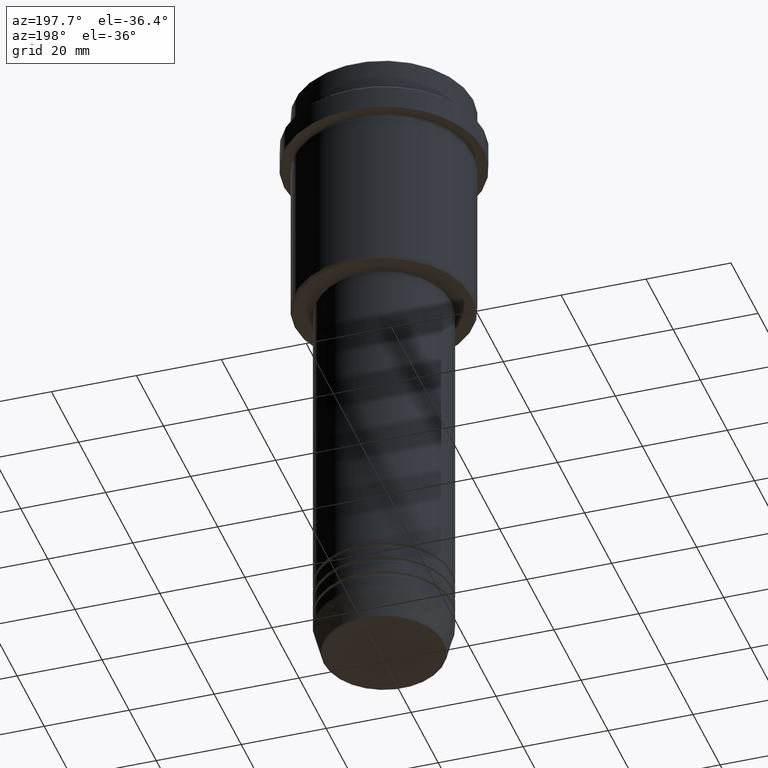
[diagram: clean part render]
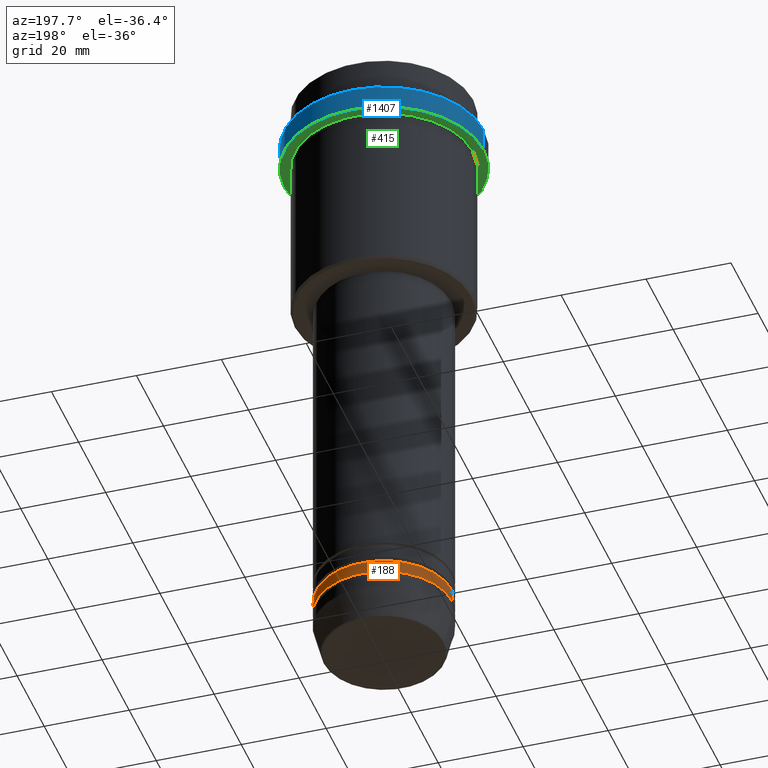
[diagram: same view with three faces highlighted in distinct colors, each labeled with its STEP entity id]
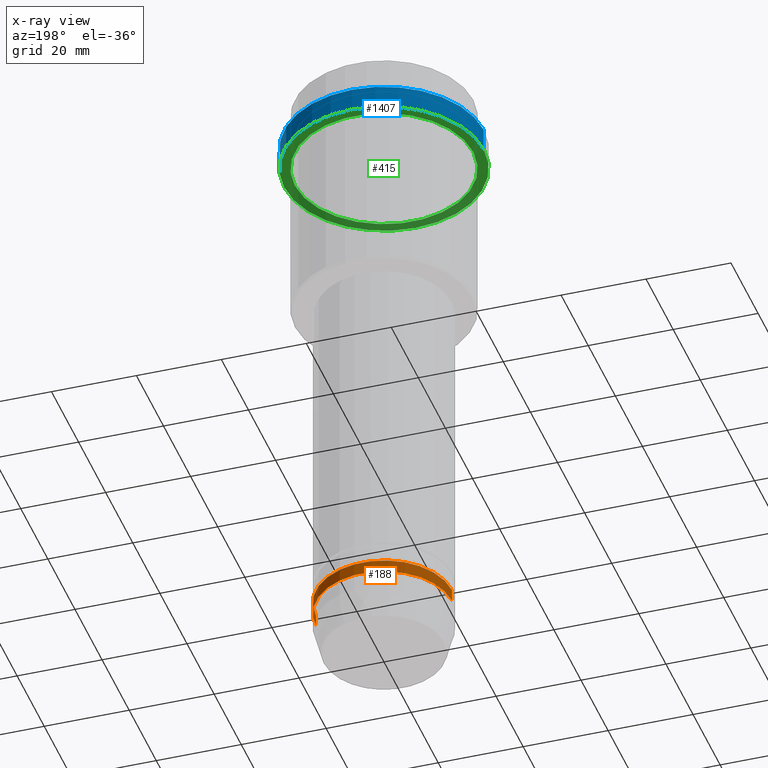
[diagram: x-ray of the same camera — body ghosted, the three highlighted faces saturated]
A machine part, auxiliary view with three faces highlighted in distinct colors.
The next image is the same camera in x-ray (body ghosted, the three faces saturated) — at least one of them is partly hidden behind the body in this view.
Their STEP definitions:

[orange] entity #188 — the highlighted cylindrical surface (partial cylindrical patch) has radius 16 mm, axis along (-0, -0, 1).
#54 = DIRECTION ( 'NONE',  ( -0.000000000000000000, -0.000000000000000000, 1.000000000000000000 ) ) ;
#96 = LINE ( 'NONE', #508, #884 ) ;
#114 = LINE ( 'NONE', #1110, #677 ) ;
#120 = DIRECTION ( 'NONE',  ( -0.000000000000000000, -0.000000000000000000, 1.000000000000000000 ) ) ;
#174 = AXIS2_PLACEMENT_3D ( 'NONE', #1044, #54, #388 ) ;
#188 = ADVANCED_FACE ( 'NONE', ( #888 ), #574, .T. ) ;
#191 = ORIENTED_EDGE ( 'NONE', *, *, #353, .F. ) ;
#353 = EDGE_CURVE ( 'NONE', #725, #946, #806, .T. ) ;
#383 = EDGE_LOOP ( 'NONE', ( #1350, #970, #191, #642 ) ) ;
#388 = DIRECTION ( 'NONE',  ( 1.000000000000000000, 0.000000000000000000, 0.000000000000000000 ) ) ;
#408 = EDGE_CURVE ( 'NONE', #1171, #725, #96, .T. ) ;
#460 = DIRECTION ( 'NONE',  ( -0.000000000000000000, -0.000000000000000000, 1.000000000000000000 ) ) ;
#470 = CARTESIAN_POINT ( 'NONE',  ( -16.00000000000000000, 1.959434878635765131E-15, -138.9999999999998579 ) ) ;
#508 = CARTESIAN_POINT ( 'NONE',  ( 16.00000000000000000, 0.000000000000000000, 0.000000000000000000 ) ) ;
#541 = CARTESIAN_POINT ( 'NONE',  ( 0.000000000000000000, 0.000000000000000000, -138.9999999999998579 ) ) ;
#574 = CYLINDRICAL_SURFACE ( 'NONE', #1098, 16.00000000000000000 ) ;
#642 = ORIENTED_EDGE ( 'NONE', *, *, #408, .F. ) ;
#677 = VECTOR ( 'NONE', #120, 1000.000000000000000 ) ;
#697 = CARTESIAN_POINT ( 'NONE',  ( 16.00000000000000000, 0.000000000000000000, -135.9999999999998579 ) ) ;
#725 = VERTEX_POINT ( 'NONE', #697 ) ;
#763 = VERTEX_POINT ( 'NONE', #470 ) ;
#768 = CARTESIAN_POINT ( 'NONE',  ( 16.00000000000000000, 0.000000000000000000, -138.9999999999998579 ) ) ;
#806 = CIRCLE ( 'NONE', #174, 16.00000000000000000 ) ;
#884 = VECTOR ( 'NONE', #1409, 1000.000000000000000 ) ;
#888 = FACE_OUTER_BOUND ( 'NONE', #383, .T. ) ;
#911 = EDGE_CURVE ( 'NONE', #1171, #763, #1112, .T. ) ;
#921 = EDGE_CURVE ( 'NONE', #763, #946, #114, .T. ) ;
#946 = VERTEX_POINT ( 'NONE', #1368 ) ;
#970 = ORIENTED_EDGE ( 'NONE', *, *, #921, .T. ) ;
#984 = DIRECTION ( 'NONE',  ( -0.000000000000000000, -0.000000000000000000, 1.000000000000000000 ) ) ;
#1044 = CARTESIAN_POINT ( 'NONE',  ( 0.000000000000000000, 0.000000000000000000, -135.9999999999998579 ) ) ;
#1098 = AXIS2_PLACEMENT_3D ( 'NONE', #1125, #460, #1233 ) ;
#1110 = CARTESIAN_POINT ( 'NONE',  ( -16.00000000000000000, 1.959434878635765131E-15, 0.000000000000000000 ) ) ;
#1112 = CIRCLE ( 'NONE', #1162, 16.00000000000000000 ) ;
#1125 = CARTESIAN_POINT ( 'NONE',  ( 0.000000000000000000, 0.000000000000000000, 0.000000000000000000 ) ) ;
#1162 = AXIS2_PLACEMENT_3D ( 'NONE', #541, #984, #1310 ) ;
#1171 = VERTEX_POINT ( 'NONE', #768 ) ;
#1233 = DIRECTION ( 'NONE',  ( 1.000000000000000000, 0.000000000000000000, 0.000000000000000000 ) ) ;
#1310 = DIRECTION ( 'NONE',  ( 1.000000000000000000, 0.000000000000000000, 0.000000000000000000 ) ) ;
#1350 = ORIENTED_EDGE ( 'NONE', *, *, #911, .T. ) ;
#1368 = CARTESIAN_POINT ( 'NONE',  ( -16.00000000000000000, 1.959434878635765131E-15, -135.9999999999998579 ) ) ;
#1409 = DIRECTION ( 'NONE',  ( -0.000000000000000000, -0.000000000000000000, 1.000000000000000000 ) ) ;

[blue] entity #1407 — the highlighted cylindrical surface (partial cylindrical patch) has radius 23.5 mm, axis along (-0, -0, 1).
#6 = CIRCLE ( 'NONE', #445, 23.50000000000000000 ) ;
#85 = AXIS2_PLACEMENT_3D ( 'NONE', #1259, #699, #1138 ) ;
#122 = DIRECTION ( 'NONE',  ( 0.000000000000000000, 0.000000000000000000, -1.000000000000000000 ) ) ;
#151 = AXIS2_PLACEMENT_3D ( 'NONE', #668, #1018, #891 ) ;
#197 = CARTESIAN_POINT ( 'NONE',  ( -23.50000000000000000, 2.877919977996280320E-15, 0.000000000000000000 ) ) ;
#232 = LINE ( 'NONE', #1105, #870 ) ;
#233 = DIRECTION ( 'NONE',  ( 1.000000000000000000, 0.000000000000000000, 0.000000000000000000 ) ) ;
#238 = VECTOR ( 'NONE', #1068, 1000.000000000000000 ) ;
#246 = ORIENTED_EDGE ( 'NONE', *, *, #827, .T. ) ;
#253 = FACE_OUTER_BOUND ( 'NONE', #622, .T. ) ;
#257 = VERTEX_POINT ( 'NONE', #1154 ) ;
#318 = EDGE_CURVE ( 'NONE', #525, #1075, #1195, .T. ) ;
#346 = CARTESIAN_POINT ( 'NONE',  ( 23.50000000000000355, 0.000000000000000000, -14.99999999999998757 ) ) ;
#365 = DIRECTION ( 'NONE',  ( -0.000000000000000000, -0.000000000000000000, 1.000000000000000000 ) ) ;
#445 = AXIS2_PLACEMENT_3D ( 'NONE', #1217, #122, #233 ) ;
#448 = CYLINDRICAL_SURFACE ( 'NONE', #151, 23.50000000000000000 ) ;
#483 = ORIENTED_EDGE ( 'NONE', *, *, #1398, .F. ) ;
#525 = VERTEX_POINT ( 'NONE', #346 ) ;
#605 = LINE ( 'NONE', #197, #238 ) ;
#622 = EDGE_LOOP ( 'NONE', ( #1142, #246, #1072, #483 ) ) ;
#657 = EDGE_CURVE ( 'NONE', #257, #1056, #6, .T. ) ;
#668 = CARTESIAN_POINT ( 'NONE',  ( 0.000000000000000000, 0.000000000000000000, 0.000000000000000000 ) ) ;
#699 = DIRECTION ( 'NONE',  ( -0.000000000000000000, -0.000000000000000000, 1.000000000000000000 ) ) ;
#827 = EDGE_CURVE ( 'NONE', #1075, #257, #605, .T. ) ;
#870 = VECTOR ( 'NONE', #365, 1000.000000000000000 ) ;
#891 = DIRECTION ( 'NONE',  ( 1.000000000000000000, 0.000000000000000000, 0.000000000000000000 ) ) ;
#1018 = DIRECTION ( 'NONE',  ( -0.000000000000000000, -0.000000000000000000, 1.000000000000000000 ) ) ;
#1056 = VERTEX_POINT ( 'NONE', #1094 ) ;
#1068 = DIRECTION ( 'NONE',  ( -0.000000000000000000, -0.000000000000000000, 1.000000000000000000 ) ) ;
#1072 = ORIENTED_EDGE ( 'NONE', *, *, #657, .T. ) ;
#1075 = VERTEX_POINT ( 'NONE', #1313 ) ;
#1094 = CARTESIAN_POINT ( 'NONE',  ( 23.50000000000000000, 0.000000000000000000, -9.500000000000015987 ) ) ;
#1105 = CARTESIAN_POINT ( 'NONE',  ( 23.50000000000000000, 0.000000000000000000, 0.000000000000000000 ) ) ;
#1138 = DIRECTION ( 'NONE',  ( 1.000000000000000000, 0.000000000000000000, 0.000000000000000000 ) ) ;
#1142 = ORIENTED_EDGE ( 'NONE', *, *, #318, .T. ) ;
#1154 = CARTESIAN_POINT ( 'NONE',  ( -23.50000000000000000, 2.877919977996280320E-15, -9.500000000000015987 ) ) ;
#1195 = CIRCLE ( 'NONE', #85, 23.50000000000000355 ) ;
#1217 = CARTESIAN_POINT ( 'NONE',  ( 0.000000000000000000, 0.000000000000000000, -9.500000000000015987 ) ) ;
#1259 = CARTESIAN_POINT ( 'NONE',  ( 0.000000000000000000, 0.000000000000000000, -14.99999999999998757 ) ) ;
#1313 = CARTESIAN_POINT ( 'NONE',  ( -23.50000000000000711, 2.877919977996281109E-15, -14.99999999999998757 ) ) ;
#1398 = EDGE_CURVE ( 'NONE', #525, #1056, #232, .T. ) ;
#1407 = ADVANCED_FACE ( 'NONE', ( #253 ), #448, .T. ) ;

[green] entity #415 — the highlighted planar face has unit normal (0, 0, -1).
#43 = VERTEX_POINT ( 'NONE', #1288 ) ;
#59 = ORIENTED_EDGE ( 'NONE', *, *, #1208, .T. ) ;
#85 = AXIS2_PLACEMENT_3D ( 'NONE', #1259, #699, #1138 ) ;
#91 = PLANE ( 'NONE',  #214 ) ;
#101 = EDGE_CURVE ( 'NONE', #1075, #525, #638, .T. ) ;
#168 = CIRCLE ( 'NONE', #218, 20.99999999999999289 ) ;
#193 = DIRECTION ( 'NONE',  ( 1.000000000000000000, 0.000000000000000000, 0.000000000000000000 ) ) ;
#214 = AXIS2_PLACEMENT_3D ( 'NONE', #744, #529, #640 ) ;
#218 = AXIS2_PLACEMENT_3D ( 'NONE', #1114, #1124, #692 ) ;
#318 = EDGE_CURVE ( 'NONE', #525, #1075, #1195, .T. ) ;
#346 = CARTESIAN_POINT ( 'NONE',  ( 23.50000000000000355, 0.000000000000000000, -14.99999999999998757 ) ) ;
#415 = ADVANCED_FACE ( 'NONE', ( #1084, #534 ), #91, .T. ) ;
#416 = EDGE_LOOP ( 'NONE', ( #857, #606 ) ) ;
#525 = VERTEX_POINT ( 'NONE', #346 ) ;
#529 = DIRECTION ( 'NONE',  ( 0.000000000000000000, 0.000000000000000000, -1.000000000000000000 ) ) ;
#534 = FACE_OUTER_BOUND ( 'NONE', #416, .T. ) ;
#606 = ORIENTED_EDGE ( 'NONE', *, *, #101, .F. ) ;
#632 = VERTEX_POINT ( 'NONE', #881 ) ;
#638 = CIRCLE ( 'NONE', #687, 23.50000000000000355 ) ;
#640 = DIRECTION ( 'NONE',  ( -1.000000000000000000, 0.000000000000000000, -0.000000000000000000 ) ) ;
#681 = CIRCLE ( 'NONE', #1212, 20.99999999999999289 ) ;
#687 = AXIS2_PLACEMENT_3D ( 'NONE', #747, #1187, #193 ) ;
#692 = DIRECTION ( 'NONE',  ( -1.000000000000000000, 0.000000000000000000, 0.000000000000000000 ) ) ;
#699 = DIRECTION ( 'NONE',  ( -0.000000000000000000, -0.000000000000000000, 1.000000000000000000 ) ) ;
#744 = CARTESIAN_POINT ( 'NONE',  ( 0.000000000000000000, 23.50000000000000355, -14.99999999999998757 ) ) ;
#747 = CARTESIAN_POINT ( 'NONE',  ( 0.000000000000000000, 0.000000000000000000, -14.99999999999998757 ) ) ;
#857 = ORIENTED_EDGE ( 'NONE', *, *, #318, .F. ) ;
#867 = CARTESIAN_POINT ( 'NONE',  ( 0.000000000000000000, 0.000000000000000000, -14.99999999999998757 ) ) ;
#881 = CARTESIAN_POINT ( 'NONE',  ( -20.99999999999999289, 0.000000000000000000, -14.99999999999998757 ) ) ;
#1075 = VERTEX_POINT ( 'NONE', #1313 ) ;
#1084 = FACE_BOUND ( 'NONE', #1200, .T. ) ;
#1099 = EDGE_CURVE ( 'NONE', #43, #632, #681, .T. ) ;
#1114 = CARTESIAN_POINT ( 'NONE',  ( 0.000000000000000000, 0.000000000000000000, -14.99999999999998757 ) ) ;
#1124 = DIRECTION ( 'NONE',  ( -0.000000000000000000, -0.000000000000000000, 1.000000000000000000 ) ) ;
#1138 = DIRECTION ( 'NONE',  ( 1.000000000000000000, 0.000000000000000000, 0.000000000000000000 ) ) ;
#1187 = DIRECTION ( 'NONE',  ( -0.000000000000000000, -0.000000000000000000, 1.000000000000000000 ) ) ;
#1193 = DIRECTION ( 'NONE',  ( -1.000000000000000000, 0.000000000000000000, 0.000000000000000000 ) ) ;
#1195 = CIRCLE ( 'NONE', #85, 23.50000000000000355 ) ;
#1200 = EDGE_LOOP ( 'NONE', ( #59, #1305 ) ) ;
#1204 = DIRECTION ( 'NONE',  ( -0.000000000000000000, -0.000000000000000000, 1.000000000000000000 ) ) ;
#1208 = EDGE_CURVE ( 'NONE', #632, #43, #168, .T. ) ;
#1212 = AXIS2_PLACEMENT_3D ( 'NONE', #867, #1204, #1193 ) ;
#1259 = CARTESIAN_POINT ( 'NONE',  ( 0.000000000000000000, 0.000000000000000000, -14.99999999999998757 ) ) ;
#1288 = CARTESIAN_POINT ( 'NONE',  ( 20.99999999999999289, 2.571758278209440872E-15, -14.99999999999998757 ) ) ;
#1305 = ORIENTED_EDGE ( 'NONE', *, *, #1099, .T. ) ;
#1313 = CARTESIAN_POINT ( 'NONE',  ( -23.50000000000000711, 2.877919977996281109E-15, -14.99999999999998757 ) ) ;